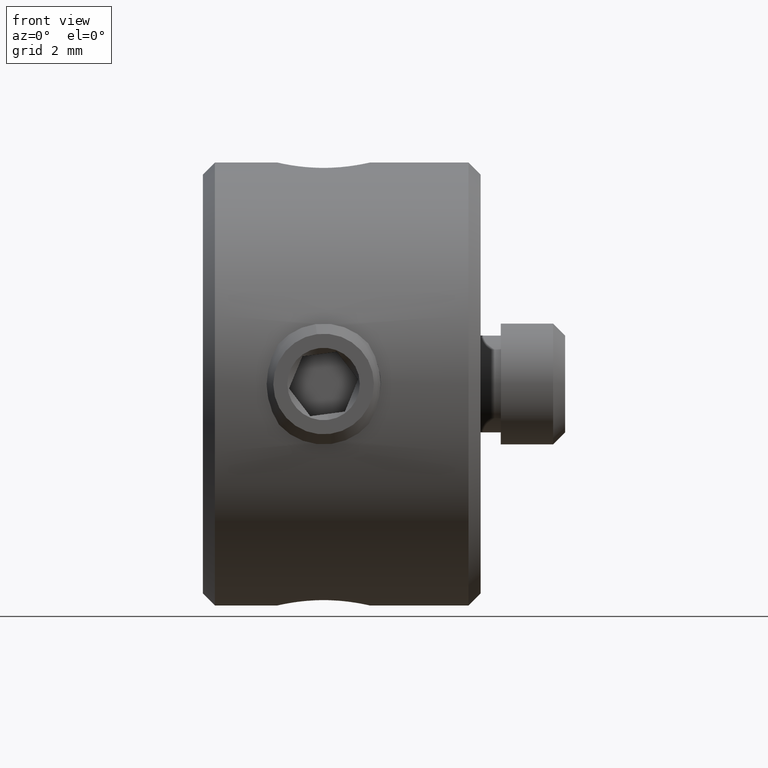
[diagram: clean part render]
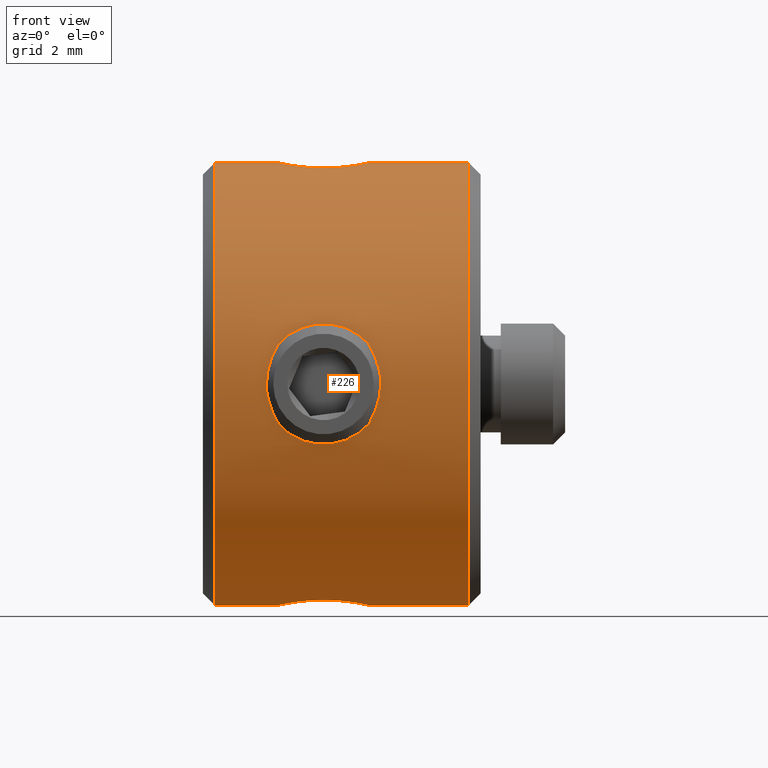
[diagram: same view with one face highlighted and labeled with its STEP entity id]
A machine part, front view. The second image highlights one B-rep face of the part: STEP entity #226.
In plain terms, the highlighted cylindrical surface (partial cylindrical patch) has radius 5.5 mm, axis along (-1, -0, -0).
Its self-contained STEP definition (entity closure, byte-faithful):
#4 = CARTESIAN_POINT ( 'NONE',  ( 2.700331781205469461, -1.168807744252212233, 5.374722582878129096 ) ) ;
#83 = ORIENTED_EDGE ( 'NONE', *, *, #353, .T. ) ;
#98 = EDGE_LOOP ( 'NONE', ( #83, #2064 ) ) ;
#128 = CARTESIAN_POINT ( 'NONE',  ( 1.578455913978019209, -5.500000000000000000, -0.1953072104975250300 ) ) ;
#146 = CYLINDRICAL_SURFACE ( 'NONE', #4131, 5.500000000000000000 ) ;
#170 = EDGE_CURVE ( 'NONE', #7700, #2625, #4577, .T. ) ;
#197 = CARTESIAN_POINT ( 'NONE',  ( 4.421694343009354711, -5.500044417562317101, 0.1936631726034102885 ) ) ;
#226 = ADVANCED_FACE ( 'NONE', ( #7750, #7288 ), #146, .T. ) ;
#244 = CARTESIAN_POINT ( 'NONE',  ( 4.144202246332273631, -0.1570780159153920275, -5.500000000000000888 ) ) ;
#328 = AXIS2_PLACEMENT_3D ( 'NONE', #6259, #1206, #1840 ) ;
#353 = EDGE_CURVE ( 'NONE', #5445, #5738, #7890, .T. ) ;
#365 = CARTESIAN_POINT ( 'NONE',  ( 1.855950839942873465, -0.1581284941378928444, -5.499963099517366949 ) ) ;
#572 = CARTESIAN_POINT ( 'NONE',  ( 1.855796653012924846, -0.001288718059105207385, -5.499999849018704090 ) ) ;
#626 = LINE ( 'NONE', #2087, #3690 ) ;
#634 = LINE ( 'NONE', #2997, #7165 ) ;
#649 = CARTESIAN_POINT ( 'NONE',  ( 1.857623687579848859, -0.07855790078746431593, 5.499580487172161192 ) ) ;
#701 = CARTESIAN_POINT ( 'NONE',  ( 3.702564455980456692, -0.9602567117631177762, 5.416697224972097047 ) ) ;
#734 = CARTESIAN_POINT ( 'NONE',  ( 0.3000000000000033751, 0.000000000000000000, -5.500000000000000000 ) ) ;
#736 = CARTESIAN_POINT ( 'NONE',  ( 2.907733809649481138, -5.294718754467468536, 1.488607843631336580 ) ) ;
#763 = CARTESIAN_POINT ( 'NONE',  ( 4.241378255028655175, -5.451479601763661975, 0.7511718643792643091 ) ) ;
#791 = CARTESIAN_POINT ( 'NONE',  ( 1.578455935827527856, -5.500000000000000000, -1.018468770684389280E-15 ) ) ;
#794 = CARTESIAN_POINT ( 'NONE',  ( 1.759100224068127494, -5.451357029395105691, 0.7520065156294709618 ) ) ;
#935 = CARTESIAN_POINT ( 'NONE',  ( 9.000000000000000000, 6.735557395310442023E-16, -5.500000000000000000 ) ) ;
#964 = DIRECTION ( 'NONE',  ( -1.000000000000000000, -0.000000000000000000, -0.000000000000000000 ) ) ;
#1088 = ORIENTED_EDGE ( 'NONE', *, *, #5196, .T. ) ;
#1206 = DIRECTION ( 'NONE',  ( 1.000000000000000000, -0.000000000000000000, -0.000000000000000000 ) ) ;
#1249 = CARTESIAN_POINT ( 'NONE',  ( 3.151604976536235281, -1.200002661940464677, 5.367494166628468122 ) ) ;
#1361 = CARTESIAN_POINT ( 'NONE',  ( 3.458391075122611902, -5.315661444905524391, -1.412533231803587030 ) ) ;
#1389 = CARTESIAN_POINT ( 'NONE',  ( 2.124720512540942075, -5.371792374769408518, -1.188809386936370283 ) ) ;
#1397 = CARTESIAN_POINT ( 'NONE',  ( 4.384405264755578457, -5.489121809875635805, 0.3904238397279957695 ) ) ;
#1425 = CARTESIAN_POINT ( 'NONE',  ( 2.629522424267563885, -5.308034467494556097, 1.440544638227224894 ) ) ;
#1479 = CARTESIAN_POINT ( 'NONE',  ( 3.872780879003332899, -5.371308050243482235, -1.191130969621518876 ) ) ;
#1512 = CARTESIAN_POINT ( 'NONE',  ( 2.422671345343757832, -1.048119334281629511, -5.399561536558996622 ) ) ;
#1538 = CARTESIAN_POINT ( 'NONE',  ( 2.700999022743522993, -1.169177295887741108, -5.374648209581995850 ) ) ;
#1540 = CARTESIAN_POINT ( 'NONE',  ( 0.3000000000000033751, 6.735557395310442023E-16, 5.500000000000000000 ) ) ;
#1610 = B_SPLINE_CURVE_WITH_KNOTS ( 'NONE', 3,
 ( #5430, #7228, #2243, #7259, #2892, #2868 ),
 .UNSPECIFIED., .F., .F.,
 ( 4, 2, 4 ),
 ( 0.4998299434869165059, 0.4999149717434582252, 0.5000000000000000000 ),
 .UNSPECIFIED. ) ;
#1840 = DIRECTION ( 'NONE',  ( 0.000000000000000000, 0.000000000000000000, -1.000000000000000000 ) ) ;
#1888 = CARTESIAN_POINT ( 'NONE',  ( 1.892765337713079754, -0.3126854415880565563, 5.491649432597748515 ) ) ;
#1944 = CARTESIAN_POINT ( 'NONE',  ( 3.999225907288989745, -0.6055567035245523755, 5.468510567502839592 ) ) ;
#1994 = CARTESIAN_POINT ( 'NONE',  ( 4.421543557091432319, -5.499999856274800258, -0.001257369145068363506 ) ) ;
#2062 = CARTESIAN_POINT ( 'NONE',  ( 1.578455935827527856, -5.500000000000000000, -1.018468770684389280E-15 ) ) ;
#2064 = ORIENTED_EDGE ( 'NONE', *, *, #6258, .T. ) ;
#2086 = CARTESIAN_POINT ( 'NONE',  ( 2.282654581362557167, -5.344773688456430527, -1.299735900989561488 ) ) ;
#2087 = CARTESIAN_POINT ( 'NONE',  ( 9.000000000000000000, 0.000000000000000000, 5.500000000000000000 ) ) ;
#2141 = CARTESIAN_POINT ( 'NONE',  ( 3.150227214486573946, -1.200095919054691596, -5.367473314923135952 ) ) ;
#2176 = CARTESIAN_POINT ( 'NONE',  ( 2.000931253178431568, -0.6056139882835726018, -5.468482122648235411 ) ) ;
#2243 = CARTESIAN_POINT ( 'NONE',  ( 1.855796082049108842, -0.0004295625895305688708, -5.499999987419012193 ) ) ;
#2261 = CARTESIAN_POINT ( 'NONE',  ( 3.914684365751365913, -0.7377085199204072019, -5.451445408397701975 ) ) ;
#2326 = CARTESIAN_POINT ( 'NONE',  ( 4.144204006664190310, 6.230750059374756651E-16, -5.500000000000000000 ) ) ;
#2407 = DIRECTION ( 'NONE',  ( 0.000000000000000000, 0.000000000000000000, 1.000000000000000000 ) ) ;
#2482 = CARTESIAN_POINT ( 'NONE',  ( 4.114331610125193883, -0.3146433716992608209, 5.492932395061810524 ) ) ;
#2510 = CARTESIAN_POINT ( 'NONE',  ( 1.870647781163608858, -0.1967410483889096284, 5.496616175326590081 ) ) ;
#2563 = CARTESIAN_POINT ( 'NONE',  ( 2.424003376187466419, -1.048777746909264508, 5.399427712592514084 ) ) ;
#2615 = CARTESIAN_POINT ( 'NONE',  ( 4.128928941406848629, -5.424832750415221838, -0.9098408457947315675 ) ) ;
#2625 = VERTEX_POINT ( 'NONE', #734 ) ;
#2682 = CARTESIAN_POINT ( 'NONE',  ( 3.187585814151698393, -5.297490581004882237, 1.478846840239194327 ) ) ;
#2700 = CARTESIAN_POINT ( 'NONE',  ( 3.091870919674434948, -5.294700932701525531, -1.488671231136385220 ) ) ;
#2701 = DIRECTION ( 'NONE',  ( -1.000000000000000000, -0.000000000000000000, -0.000000000000000000 ) ) ;
#2855 = CARTESIAN_POINT ( 'NONE',  ( 2.851311292777130468, -1.200167465163357372, -5.367457317660481841 ) ) ;
#2868 = CARTESIAN_POINT ( 'NONE',  ( 1.855796653012924846, -0.001288718059105207385, -5.499999849018704090 ) ) ;
#2883 = CARTESIAN_POINT ( 'NONE',  ( 1.886213807720543256, -0.3163594640068274622, -5.492811822560591750 ) ) ;
#2892 = CARTESIAN_POINT ( 'NONE',  ( 1.855796443248991734, -0.001075345055641947333, -5.499999899014640370 ) ) ;
#2974 = CARTESIAN_POINT ( 'NONE',  ( 9.000000000000000000, 6.735557395310442023E-16, -5.500000000000000000 ) ) ;
#2997 = CARTESIAN_POINT ( 'NONE',  ( 9.000000000000000000, 0.000000000000000000, 5.500000000000000000 ) ) ;
#3037 = ORIENTED_EDGE ( 'NONE', *, *, #7442, .T. ) ;
#3114 = EDGE_CURVE ( 'NONE', #4984, #6402, #4477, .T. ) ;
#3118 = CARTESIAN_POINT ( 'NONE',  ( 3.577286517975349245, -1.048092284144204411, 5.399565251223068074 ) ) ;
#3152 = CARTESIAN_POINT ( 'NONE',  ( 1.855796789442305084, -0.03763017485733956280, 5.500000000000000000 ) ) ;
#3195 = CARTESIAN_POINT ( 'NONE',  ( 4.144204006664190310, -6.235807956430404823E-16, 5.500000000000000000 ) ) ;
#3210 = CARTESIAN_POINT ( 'NONE',  ( 6.600000000000004974, 6.735557395310442023E-16, -5.500000000000000000 ) ) ;
#3219 = ORIENTED_EDGE ( 'NONE', *, *, #3114, .T. ) ;
#3232 = VERTEX_POINT ( 'NONE', #7780 ) ;
#3243 = CARTESIAN_POINT ( 'NONE',  ( 2.813543062091591107, -5.297434189638591029, 1.479050293020339524 ) ) ;
#3268 = CARTESIAN_POINT ( 'NONE',  ( 2.126361432458987899, -5.371488768837783923, 1.190173401528777708 ) ) ;
#3290 = CARTESIAN_POINT ( 'NONE',  ( 4.421392771173509928, -5.499955294987283416, -0.1961779108935469418 ) ) ;
#3324 = CARTESIAN_POINT ( 'NONE',  ( 3.459239787744903705, -5.315751263188829512, 1.412191422350882686 ) ) ;
#3588 = DIRECTION ( 'NONE',  ( -1.000000000000000000, -0.000000000000000000, -0.000000000000000000 ) ) ;
#3613 = DIRECTION ( 'NONE',  ( -1.000000000000000000, -0.000000000000000000, -0.000000000000000000 ) ) ;
#3644 = VERTEX_POINT ( 'NONE', #2326 ) ;
#3690 = VECTOR ( 'NONE', #2701, 1000.000000000000000 ) ;
#3757 = CARTESIAN_POINT ( 'NONE',  ( 3.299770734078153467, -1.168887779525761728, 5.374709638405927414 ) ) ;
#3846 = CARTESIAN_POINT ( 'NONE',  ( 4.421543557091432319, -5.499999856274800258, -0.001257369145068363506 ) ) ;
#3884 = CARTESIAN_POINT ( 'NONE',  ( 2.624326106106556811, -5.306327030559834235, -1.448727937843180991 ) ) ;
#3893 = CARTESIAN_POINT ( 'NONE',  ( 2.283852408455780303, -5.344585049812186739, 1.300508424080935255 ) ) ;
#3940 = CARTESIAN_POINT ( 'NONE',  ( 4.383711656584319272, -5.488934713063629012, -0.3926386940870072451 ) ) ;
#3948 = CARTESIAN_POINT ( 'NONE',  ( 4.136736081232090356, -5.425191345684435618, 0.9148683394524298462 ) ) ;
#4002 = CARTESIAN_POINT ( 'NONE',  ( 2.297455106597019459, -0.9602325548456798199, -5.416696209193996303 ) ) ;
#4108 = CARTESIAN_POINT ( 'NONE',  ( 3.577190107290011412, -1.047985207466723967, -5.399582151884552594 ) ) ;
#4131 = AXIS2_PLACEMENT_3D ( 'NONE', #6115, #4327, #2407 ) ;
#4327 = DIRECTION ( 'NONE',  ( -1.000000000000000000, -0.000000000000000000, -0.000000000000000000 ) ) ;
#4437 = CARTESIAN_POINT ( 'NONE',  ( 4.144204006664190310, -6.235807956430404823E-16, 5.500000000000000000 ) ) ;
#4477 = B_SPLINE_CURVE_WITH_KNOTS ( 'NONE', 3,
 ( #4437, #6296, #2482, #1944, #6378, #701, #3118, #3757, #1249, #7644, #4, #2563, #7006, #5122, #6326, #5681, #1888, #2510, #6946, #649, #3152, #7588 ),
 .UNSPECIFIED., .F., .F.,
 ( 4, 2, 2, 2, 2, 2, 2, 2, 2, 2, 4 ),
 ( 0.000000000000000000, 0.06247901916504137315, 0.1249580383300827463, 0.1874370574951241264, 0.2499160766601654926, 0.3123950958252068588, 0.3748741149902482528, 0.4373531341552895912, 0.4685926437378102882, 0.4842123985290706645, 0.4998321533203309852 ),
 .UNSPECIFIED. ) ;
#4550 = CARTESIAN_POINT ( 'NONE',  ( 1.615959753671748489, -5.489022412305176957, 0.3917144606675254104 ) ) ;
#4577 = CIRCLE ( 'NONE', #328, 5.500000000000000000 ) ;
#4592 = LINE ( 'NONE', #2974, #5875 ) ;
#4627 = CARTESIAN_POINT ( 'NONE',  ( 3.369159741327691027, -5.307944498030427560, -1.440873561933917024 ) ) ;
#4742 = EDGE_CURVE ( 'NONE', #5532, #5127, #6701, .T. ) ;
#4754 = ORIENTED_EDGE ( 'NONE', *, *, #8116, .T. ) ;
#4760 = ORIENTED_EDGE ( 'NONE', *, *, #6479, .F. ) ;
#4785 = CARTESIAN_POINT ( 'NONE',  ( 3.704560544001579636, -0.9583839386340159416, -5.417007580507148035 ) ) ;
#4984 = VERTEX_POINT ( 'NONE', #3195 ) ;
#5038 = ORIENTED_EDGE ( 'NONE', *, *, #6401, .T. ) ;
#5106 = CARTESIAN_POINT ( 'NONE',  ( 1.864851474627744699, -5.424850721518529539, 0.9167327684210686556 ) ) ;
#5122 = CARTESIAN_POINT ( 'NONE',  ( 2.086135120195862225, -0.7389386927559655760, 5.451283005118031433 ) ) ;
#5127 = VERTEX_POINT ( 'NONE', #5857 ) ;
#5134 = CARTESIAN_POINT ( 'NONE',  ( 1.578455957869245418, -5.499999999999999112, 0.1970253287667620701 ) ) ;
#5153 = CARTESIAN_POINT ( 'NONE',  ( 3.717804349185159563, -5.344772811874646479, -1.299780943337705219 ) ) ;
#5174 = CARTESIAN_POINT ( 'NONE',  ( 3.186333142861533574, -5.297441245622661832, -1.479022536957240508 ) ) ;
#5180 = CARTESIAN_POINT ( 'NONE',  ( 3.092389846795346564, -5.294701379075425152, 1.488669643489465289 ) ) ;
#5196 = EDGE_CURVE ( 'NONE', #5127, #4984, #634, .T. ) ;
#5197 = LINE ( 'NONE', #935, #6108 ) ;
#5201 = CARTESIAN_POINT ( 'NONE',  ( 1.855795995025845579, -1.356793690610044312E-15, 5.499999999966491693 ) ) ;
#5212 = CARTESIAN_POINT ( 'NONE',  ( 3.873721569682850863, -5.371489141711627724, 1.190289719478332842 ) ) ;
#5233 = CARTESIAN_POINT ( 'NONE',  ( 4.070532826698049611, -5.411668534281036891, -0.9842659520795284944 ) ) ;
#5264 = CARTESIAN_POINT ( 'NONE',  ( 2.813328711756829303, -5.294728629958696864, -1.488572718999585653 ) ) ;
#5430 = CARTESIAN_POINT ( 'NONE',  ( 1.855796018871236575, -1.882350515513986290E-12, -5.499999999966491693 ) ) ;
#5445 = VERTEX_POINT ( 'NONE', #791 ) ;
#5532 = VERTEX_POINT ( 'NONE', #3210 ) ;
#5681 = CARTESIAN_POINT ( 'NONE',  ( 1.914838246271808098, -0.3886020671729068510, 5.486738999045885024 ) ) ;
#5738 = VERTEX_POINT ( 'NONE', #7150 ) ;
#5811 = ORIENTED_EDGE ( 'NONE', *, *, #4742, .T. ) ;
#5814 = CARTESIAN_POINT ( 'NONE',  ( 1.863760525485351094, -5.425104890828577275, -0.9152365812218173913 ) ) ;
#5857 = CARTESIAN_POINT ( 'NONE',  ( 6.600000000000004974, 0.000000000000000000, 5.500000000000000000 ) ) ;
#5870 = CARTESIAN_POINT ( 'NONE',  ( 1.758623025148580155, -5.451480790128060860, -0.7511181982173852356 ) ) ;
#5875 = VECTOR ( 'NONE', #3588, 1000.000000000000000 ) ;
#5997 = CARTESIAN_POINT ( 'NONE',  ( 3.999665619364977331, -0.6045331742389082885, -5.468606011935862377 ) ) ;
#6055 = DIRECTION ( 'NONE',  ( 0.000000000000000000, 0.000000000000000000, -1.000000000000000000 ) ) ;
#6059 = CARTESIAN_POINT ( 'NONE',  ( 1.855796653012924846, -0.001288718059105207385, -5.499999849018704090 ) ) ;
#6108 = VECTOR ( 'NONE', #964, 1000.000000000000000 ) ;
#6115 = CARTESIAN_POINT ( 'NONE',  ( 9.000000000000000000, 0.000000000000000000, 0.000000000000000000 ) ) ;
#6225 = AXIS2_PLACEMENT_3D ( 'NONE', #7875, #7271, #6055 ) ;
#6258 = EDGE_CURVE ( 'NONE', #5738, #5445, #7965, .T. ) ;
#6259 = CARTESIAN_POINT ( 'NONE',  ( 0.3000000000000033751, 0.000000000000000000, 0.000000000000000000 ) ) ;
#6296 = CARTESIAN_POINT ( 'NONE',  ( 4.144205779052395400, -0.1581538231540374206, 5.499999999999999112 ) ) ;
#6326 = CARTESIAN_POINT ( 'NONE',  ( 2.001365261907872561, -0.6065726185935809145, 5.468394215802377722 ) ) ;
#6378 = CARTESIAN_POINT ( 'NONE',  ( 3.915043399591892737, -0.7375534338146916280, 5.451487568707710452 ) ) ;
#6401 = EDGE_CURVE ( 'NONE', #7424, #3644, #6705, .T. ) ;
#6402 = VERTEX_POINT ( 'NONE', #5201 ) ;
#6431 = CARTESIAN_POINT ( 'NONE',  ( 4.276688737344297664, -5.460775009335485208, -0.6618751049173263734 ) ) ;
#6461 = CARTESIAN_POINT ( 'NONE',  ( 3.370291833110533819, -5.308032435187898912, 1.440550623794297547 ) ) ;
#6479 = EDGE_CURVE ( 'NONE', #5532, #3644, #5197, .T. ) ;
#6495 = CARTESIAN_POINT ( 'NONE',  ( 2.540795650059925581, -5.315753631273810953, 1.412176055081183268 ) ) ;
#6513 = CARTESIAN_POINT ( 'NONE',  ( 4.231994456819243133, -5.449373410396454176, -0.7489660664664135048 ) ) ;
#6515 = ORIENTED_EDGE ( 'NONE', *, *, #7299, .F. ) ;
#6647 = EDGE_LOOP ( 'NONE', ( #4760, #5811, #1088, #3219, #3037, #6732, #6515, #4754, #5038 ) ) ;
#6701 = CIRCLE ( 'NONE', #6225, 5.500000000000000000 ) ;
#6705 = B_SPLINE_CURVE_WITH_KNOTS ( 'NONE', 3,
 ( #6059, #365, #2883, #2176, #7822, #4002, #1512, #1538, #2855, #2141, #7909, #4108, #4785, #2261, #5997, #7308, #244, #7249 ),
 .UNSPECIFIED., .F., .F.,
 ( 4, 2, 2, 2, 2, 2, 2, 2, 4 ),
 ( 0.5000000000000000000, 0.5625000000000000000, 0.6250000000000000000, 0.6875000000000000000, 0.7500000000000000000, 0.8125000000000000000, 0.8750000000000000000, 0.9375000000000000000, 1.000000000000000000 ),
 .UNSPECIFIED. ) ;
#6732 = ORIENTED_EDGE ( 'NONE', *, *, #170, .T. ) ;
#6946 = CARTESIAN_POINT ( 'NONE',  ( 1.865057707225085348, -0.1574543382029753580, 5.497887322421403766 ) ) ;
#7006 = CARTESIAN_POINT ( 'NONE',  ( 2.297344759657868885, -0.9600107001751839730, 5.416723756025380254 ) ) ;
#7150 = CARTESIAN_POINT ( 'NONE',  ( 4.421543557091432319, -5.499999856274800258, -0.001257369145068363506 ) ) ;
#7165 = VECTOR ( 'NONE', #3613, 1000.000000000000000 ) ;
#7228 = CARTESIAN_POINT ( 'NONE',  ( 1.855796035094796403, -0.0002147796120442202212, -5.499999999999999112 ) ) ;
#7249 = CARTESIAN_POINT ( 'NONE',  ( 4.144204006664190310, 6.230750059374756651E-16, -5.500000000000000000 ) ) ;
#7259 = CARTESIAN_POINT ( 'NONE',  ( 1.855796285428180870, -0.0008591352762471415015, -5.499999937092702851 ) ) ;
#7271 = DIRECTION ( 'NONE',  ( -1.000000000000000000, 0.000000000000000000, 0.000000000000000000 ) ) ;
#7288 = FACE_BOUND ( 'NONE', #98, .T. ) ;
#7299 = EDGE_CURVE ( 'NONE', #3232, #2625, #4592, .T. ) ;
#7308 = CARTESIAN_POINT ( 'NONE',  ( 4.114175378668087468, -0.3149503122239352138, -5.492897083813466530 ) ) ;
#7424 = VERTEX_POINT ( 'NONE', #572 ) ;
#7442 = EDGE_CURVE ( 'NONE', #6402, #7700, #626, .T. ) ;
#7588 = CARTESIAN_POINT ( 'NONE',  ( 1.855795995025845579, -1.356793690610044312E-15, 5.499999999966491693 ) ) ;
#7644 = CARTESIAN_POINT ( 'NONE',  ( 2.849243684349827888, -1.200260528176911201, 5.367436509354843288 ) ) ;
#7652 = CARTESIAN_POINT ( 'NONE',  ( 3.717552248117709901, -5.344755412440964193, 1.299836144674871630 ) ) ;
#7697 = CARTESIAN_POINT ( 'NONE',  ( 1.615698478135615179, -5.489092980605351002, -0.3907423743308030550 ) ) ;
#7700 = VERTEX_POINT ( 'NONE', #1540 ) ;
#7727 = CARTESIAN_POINT ( 'NONE',  ( 1.578455935827527856, -5.500000000000000000, -1.018468770684389280E-15 ) ) ;
#7750 = FACE_OUTER_BOUND ( 'NONE', #6647, .T. ) ;
#7780 = CARTESIAN_POINT ( 'NONE',  ( 1.855796018871236575, -1.882350515513986290E-12, -5.499999999966491693 ) ) ;
#7822 = CARTESIAN_POINT ( 'NONE',  ( 2.085373075008762456, -0.7380344873579683940, -5.451417198999939373 ) ) ;
#7875 = CARTESIAN_POINT ( 'NONE',  ( 6.600000000000004974, 0.000000000000000000, 0.000000000000000000 ) ) ;
#7890 = B_SPLINE_CURVE_WITH_KNOTS ( 'NONE', 3,
 ( #2062, #5134, #4550, #794, #5106, #3268, #3893, #6495, #1425, #3243, #736, #5180, #2682, #6461, #3324, #7652, #5212, #3948, #763, #1397, #197, #3846 ),
 .UNSPECIFIED., .F., .F.,
 ( 4, 2, 2, 2, 2, 2, 2, 2, 2, 2, 4 ),
 ( 0.000000000000000000, 0.06249999999999991673, 0.1249999999999998335, 0.1874999999999998612, 0.2187499999999998335, 0.2499999999999998335, 0.2812499999999998335, 0.3124999999999997780, 0.3749999999999998890, 0.4374999999999999445, 0.5000000000000000000 ),
 .UNSPECIFIED. ) ;
#7909 = CARTESIAN_POINT ( 'NONE',  ( 3.301886403103131862, -1.168114870796667981, -5.374873771414822698 ) ) ;
#7965 = B_SPLINE_CURVE_WITH_KNOTS ( 'NONE', 3,
 ( #1994, #3290, #3940, #6431, #6513, #2615, #5233, #1479, #5153, #1361, #4627, #5174, #2700, #5264, #3884, #2086, #1389, #5814, #5870, #7697, #128, #7727 ),
 .UNSPECIFIED., .F., .F.,
 ( 4, 2, 2, 2, 2, 2, 2, 2, 2, 2, 4 ),
 ( 0.5000000000000000000, 0.5625000000000001110, 0.5937500000000001110, 0.6250000000000002220, 0.6875000000000001110, 0.7187500000000001110, 0.7500000000000001110, 0.8125000000000000000, 0.8750000000000000000, 0.9375000000000000000, 1.000000000000000000 ),
 .UNSPECIFIED. ) ;
#8116 = EDGE_CURVE ( 'NONE', #3232, #7424, #1610, .T. ) ;